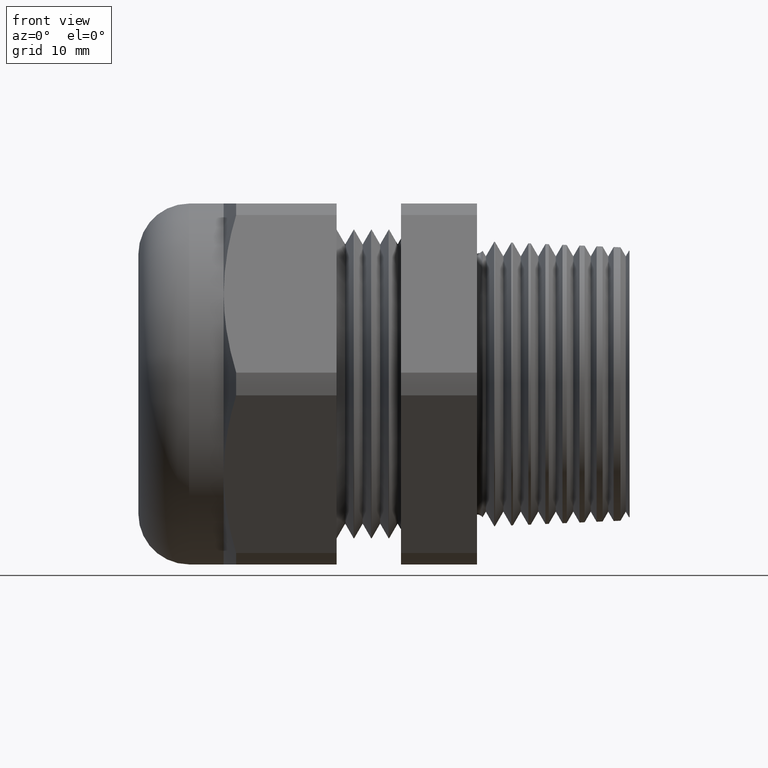
[diagram: clean part render]
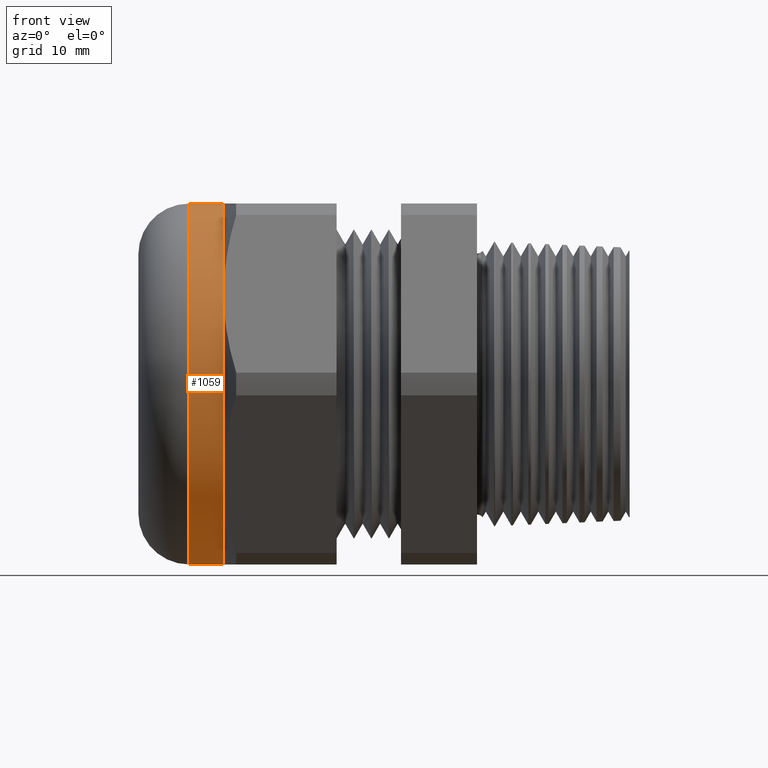
[diagram: same view with one face highlighted and labeled with its STEP entity id]
A machine part, front view. The second image highlights one B-rep face of the part: STEP entity #1059.
In plain terms, the highlighted cylindrical surface (partial cylindrical patch) has radius 16.51 mm, axis along (-1, 0, 0).
Its self-contained STEP definition (entity closure, byte-faithful):
#418 = VERTEX_POINT ( 'NONE', #2116 ) ;
#475 = EDGE_CURVE ( 'NONE', #484, #492, #2262, .T. ) ;
#478 = EDGE_CURVE ( 'NONE', #479, #418, #2258, .T. ) ;
#479 = VERTEX_POINT ( 'NONE', #2254 ) ;
#484 = VERTEX_POINT ( 'NONE', #2251 ) ;
#492 = VERTEX_POINT ( 'NONE', #2297 ) ;
#837 = VERTEX_POINT ( 'NONE', #2939 ) ;
#867 = VERTEX_POINT ( 'NONE', #2985 ) ;
#1059 = ADVANCED_FACE ( 'NONE', ( #3326 ), #3325, .T. ) ;
#1060 = EDGE_LOOP ( 'NONE', ( #1112, #1113, #1115, #1117, #1119, #1120 ) ) ;
#1112 = ORIENTED_EDGE ( 'NONE', *, *, #475, .F. ) ;
#1113 = ORIENTED_EDGE ( 'NONE', *, *, #1114, .T. ) ;
#1114 = EDGE_CURVE ( 'NONE', #484, #867, #3392, .T. ) ;
#1115 = ORIENTED_EDGE ( 'NONE', *, *, #1116, .T. ) ;
#1116 = EDGE_CURVE ( 'NONE', #867, #837, #3453, .T. ) ;
#1117 = ORIENTED_EDGE ( 'NONE', *, *, #1118, .T. ) ;
#1118 = EDGE_CURVE ( 'NONE', #837, #479, #3448, .T. ) ;
#1119 = ORIENTED_EDGE ( 'NONE', *, *, #478, .T. ) ;
#1120 = ORIENTED_EDGE ( 'NONE', *, *, #1121, .T. ) ;
#1121 = EDGE_CURVE ( 'NONE', #418, #492, #3444, .T. ) ;
#2116 = CARTESIAN_POINT ( 'NONE',  ( -1.036999999999999900, 0.0000000000000000000, 0.6499999999999999100 ) ) ;
#2251 = CARTESIAN_POINT ( 'NONE',  ( -0.9125000000000002000, 0.0000000000000000000, -0.6499999999999998000 ) ) ;
#2254 = CARTESIAN_POINT ( 'NONE',  ( -0.9125000000000002000, 0.0000000000000000000, 0.6499999999999998000 ) ) ;
#2255 = DIRECTION ( 'NONE',  ( -1.000000000000000000, 0.0000000000000000000, 0.0000000000000000000 ) ) ;
#2256 = VECTOR ( 'NONE', #2255, 39.37007874015748100 ) ;
#2257 = CARTESIAN_POINT ( 'NONE',  ( -0.7238591030180623300, 0.0000000000000000000, 0.6499999999999999100 ) ) ;
#2258 = LINE ( 'NONE', #2257, #2256 ) ;
#2259 = DIRECTION ( 'NONE',  ( -1.000000000000000000, 0.0000000000000000000, 0.0000000000000000000 ) ) ;
#2260 = VECTOR ( 'NONE', #2259, 39.37007874015748100 ) ;
#2261 = CARTESIAN_POINT ( 'NONE',  ( -0.7238591030180623300, 7.960204194457794200E-017, -0.6499999999999999100 ) ) ;
#2262 = LINE ( 'NONE', #2261, #2260 ) ;
#2297 = CARTESIAN_POINT ( 'NONE',  ( -1.036999999999999900, 7.960204194457794200E-017, -0.6499999999999999100 ) ) ;
#2939 = CARTESIAN_POINT ( 'NONE',  ( -0.9125000000000002000, -0.5629165124598850500, 0.3249999999999996800 ) ) ;
#2985 = CARTESIAN_POINT ( 'NONE',  ( -0.9125000000000002000, -0.5629165124598848300, -0.3249999999999999600 ) ) ;
#3325 = CYLINDRICAL_SURFACE ( 'NONE', #3388, 0.6499999999999999100 ) ;
#3326 = FACE_OUTER_BOUND ( 'NONE', #1060, .T. ) ;
#3331 = CARTESIAN_POINT ( 'NONE',  ( -0.7238591030180623300, 0.0000000000000000000, 0.0000000000000000000 ) ) ;
#3386 = DIRECTION ( 'NONE',  ( 0.0000000000000000000, 0.0000000000000000000, 1.000000000000000000 ) ) ;
#3387 = DIRECTION ( 'NONE',  ( -1.000000000000000000, 0.0000000000000000000, 0.0000000000000000000 ) ) ;
#3388 = AXIS2_PLACEMENT_3D ( 'NONE', #3331, #3387, #3386 ) ;
#3389 = DIRECTION ( 'NONE',  ( 0.0000000000000000000, 0.0000000000000000000, 1.000000000000000000 ) ) ;
#3390 = DIRECTION ( 'NONE',  ( -1.000000000000000000, 0.0000000000000000000, 0.0000000000000000000 ) ) ;
#3391 = AXIS2_PLACEMENT_3D ( 'NONE', #3396, #3390, #3389 ) ;
#3392 = CIRCLE ( 'NONE', #3391, 0.6499999999999999100 ) ;
#3396 = CARTESIAN_POINT ( 'NONE',  ( -0.9124999999999999800, 0.0000000000000000000, 0.0000000000000000000 ) ) ;
#3440 = DIRECTION ( 'NONE',  ( 0.0000000000000000000, 0.0000000000000000000, -1.000000000000000000 ) ) ;
#3441 = DIRECTION ( 'NONE',  ( 1.000000000000000000, 0.0000000000000000000, 0.0000000000000000000 ) ) ;
#3442 = CARTESIAN_POINT ( 'NONE',  ( -1.036999999999999900, 0.0000000000000000000, 0.0000000000000000000 ) ) ;
#3443 = AXIS2_PLACEMENT_3D ( 'NONE', #3442, #3441, #3440 ) ;
#3444 = CIRCLE ( 'NONE', #3443, 0.6499999999999999100 ) ;
#3445 = DIRECTION ( 'NONE',  ( 0.0000000000000000000, 0.0000000000000000000, 1.000000000000000000 ) ) ;
#3446 = DIRECTION ( 'NONE',  ( -1.000000000000000000, 0.0000000000000000000, 0.0000000000000000000 ) ) ;
#3447 = AXIS2_PLACEMENT_3D ( 'NONE', #3454, #3446, #3445 ) ;
#3448 = CIRCLE ( 'NONE', #3447, 0.6499999999999999100 ) ;
#3449 = DIRECTION ( 'NONE',  ( 0.0000000000000000000, 0.0000000000000000000, 1.000000000000000000 ) ) ;
#3450 = DIRECTION ( 'NONE',  ( -1.000000000000000000, 0.0000000000000000000, 0.0000000000000000000 ) ) ;
#3451 = CARTESIAN_POINT ( 'NONE',  ( -0.9124999999999999800, 0.0000000000000000000, 0.0000000000000000000 ) ) ;
#3452 = AXIS2_PLACEMENT_3D ( 'NONE', #3451, #3450, #3449 ) ;
#3453 = CIRCLE ( 'NONE', #3452, 0.6499999999999999100 ) ;
#3454 = CARTESIAN_POINT ( 'NONE',  ( -0.9124999999999999800, 0.0000000000000000000, 0.0000000000000000000 ) ) ;